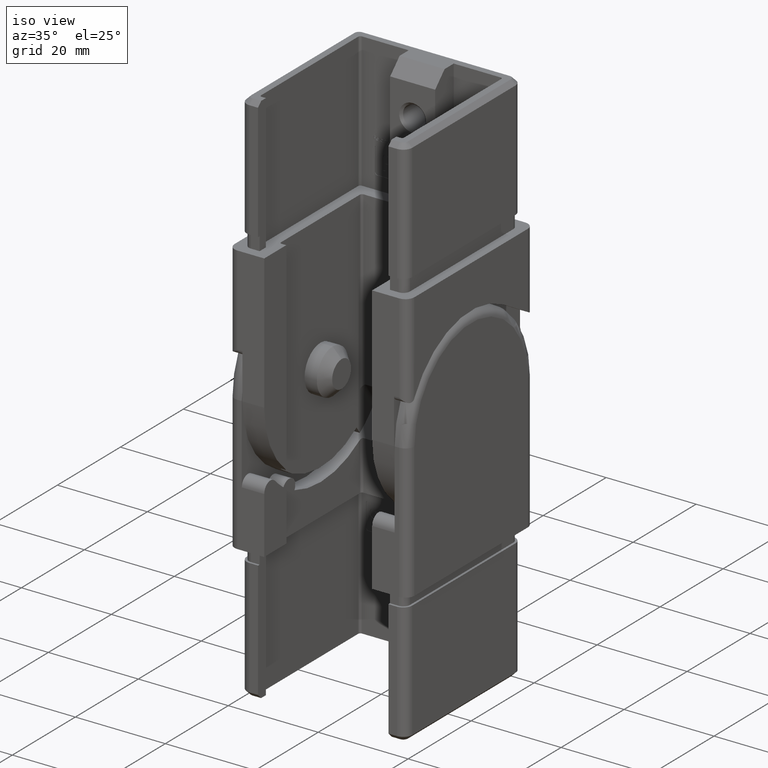
[diagram: clean part render]
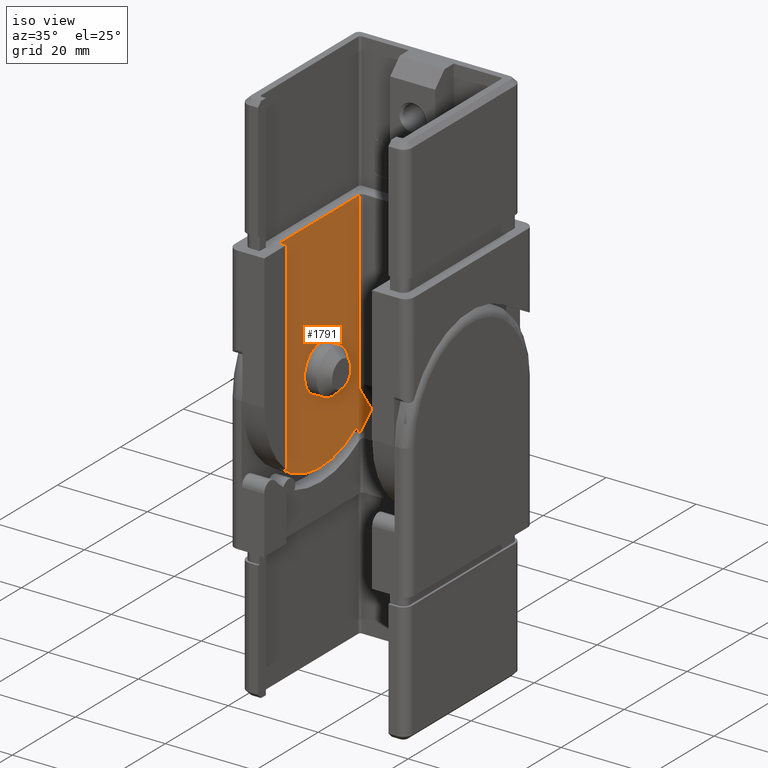
[diagram: same view with one face highlighted and labeled with its STEP entity id]
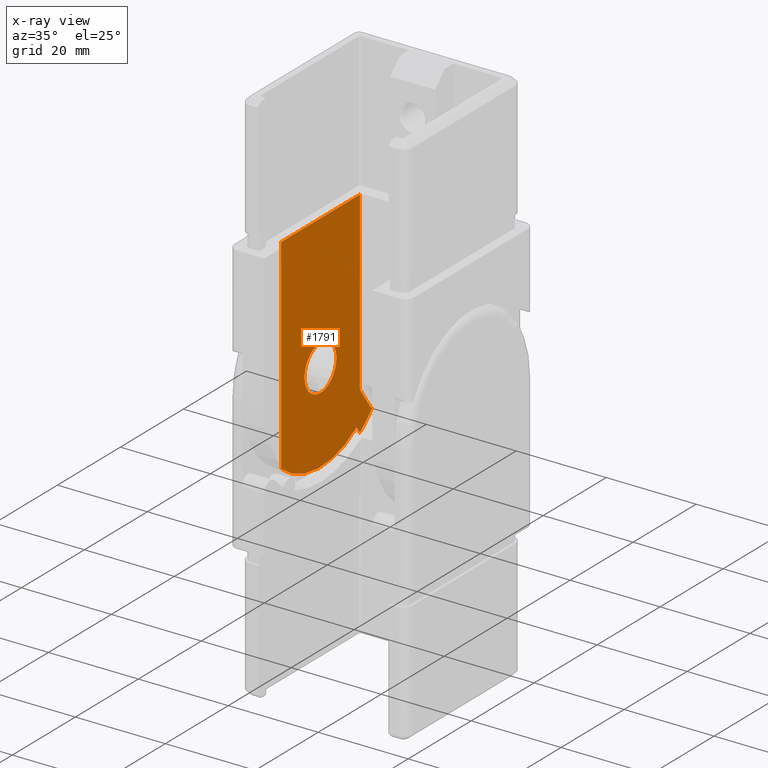
[diagram: x-ray of the same camera — body ghosted, the highlighted face saturated]
A machine part, iso view. The second image highlights one B-rep face of the part: STEP entity #1791.
The next image is the same camera in x-ray: the body ghosted, the highlighted face saturated — about 0% of this face is hidden behind the body in this view.
In plain terms, the highlighted planar face has unit normal (1, 0, 0).
Its self-contained STEP definition (entity closure, byte-faithful):
#320 = DIRECTION ( 'NONE',  ( -0.0000000000000000000, -0.5735764363510413900, 0.8191520442889950200 ) ) ;
#559 = CIRCLE ( 'NONE', #23959, 20.00000000000002800 ) ;
#1791 = ADVANCED_FACE ( 'NONE', ( #2171, #10781 ), #4613, .T. ) ;
#2171 = FACE_OUTER_BOUND ( 'NONE', #10698, .T. ) ;
#2402 = ORIENTED_EDGE ( 'NONE', *, *, #8457, .T. ) ;
#2419 = CARTESIAN_POINT ( 'NONE',  ( -13.49999999999998900, -5.050000000000001600, -30.00000000000000000 ) ) ;
#2611 = CARTESIAN_POINT ( 'NONE',  ( -13.50000000000000000, 12.18084795571099100, -38.67881975027214000 ) ) ;
#2798 = ORIENTED_EDGE ( 'NONE', *, *, #20156, .T. ) ;
#2855 = CARTESIAN_POINT ( 'NONE',  ( -13.50000000000000000, 12.50396631245270700, -47.85751456550009000 ) ) ;
#2898 = CIRCLE ( 'NONE', #14212, 5.050000000000001600 ) ;
#3005 = DIRECTION ( 'NONE',  ( 0.0000000000000000000, 0.0000000000000000000, -1.000000000000000000 ) ) ;
#3091 = DIRECTION ( 'NONE',  ( -3.469446951953609300E-016, -1.000000000000000000, 0.0000000000000000000 ) ) ;
#3190 = LINE ( 'NONE', #4595, #11825 ) ;
#3456 = VERTEX_POINT ( 'NONE', #9348 ) ;
#3464 = EDGE_CURVE ( 'NONE', #13940, #15973, #15968, .T. ) ;
#3605 = DIRECTION ( 'NONE',  ( 4.003208021484941500E-016, 1.000000000000000000, 0.0000000000000000000 ) ) ;
#3723 = CARTESIAN_POINT ( 'NONE',  ( -13.49999999999998800, 1.734723475976807800E-016, -30.00000000000000000 ) ) ;
#4349 = DIRECTION ( 'NONE',  ( 0.0000000000000000000, -0.0000000000000000000, -1.000000000000000000 ) ) ;
#4423 = VERTEX_POINT ( 'NONE', #2855 ) ;
#4576 = DIRECTION ( 'NONE',  ( 1.000000000000000000, 0.0000000000000000000, 0.0000000000000000000 ) ) ;
#4595 = CARTESIAN_POINT ( 'NONE',  ( -13.50000000000000000, -12.49999999999997700, -45.19868415357075300 ) ) ;
#4613 = PLANE ( 'NONE',  #10673 ) ;
#5103 = VERTEX_POINT ( 'NONE', #18483 ) ;
#5526 = DIRECTION ( 'NONE',  ( -1.000000000000000000, 3.469446951953615700E-016, -0.0000000000000000000 ) ) ;
#5689 = DIRECTION ( 'NONE',  ( -3.435095992033280500E-016, -1.000000000000000000, 0.0000000000000000000 ) ) ;
#6516 = DIRECTION ( 'NONE',  ( 0.0000000000000000000, 0.0000000000000000000, -1.000000000000000000 ) ) ;
#6862 = DIRECTION ( 'NONE',  ( -1.000000000000000000, -0.0000000000000000000, -0.0000000000000000000 ) ) ;
#6971 = ORIENTED_EDGE ( 'NONE', *, *, #9605, .T. ) ;
#7449 = CIRCLE ( 'NONE', #14801, 1.500000000000001300 ) ;
#7768 = ORIENTED_EDGE ( 'NONE', *, *, #12139, .F. ) ;
#7830 = ORIENTED_EDGE ( 'NONE', *, *, #19503, .T. ) ;
#8457 = EDGE_CURVE ( 'NONE', #3456, #19215, #3190, .T. ) ;
#9060 = DIRECTION ( 'NONE',  ( 0.0000000000000000000, 0.0000000000000000000, -1.000000000000000000 ) ) ;
#9119 = DIRECTION ( 'NONE',  ( -1.000000000000000000, 3.469446951953615700E-016, -0.0000000000000000000 ) ) ;
#9121 = ORIENTED_EDGE ( 'NONE', *, *, #22441, .F. ) ;
#9208 = VERTEX_POINT ( 'NONE', #22235 ) ;
#9337 = EDGE_LOOP ( 'NONE', ( #10379 ) ) ;
#9348 = CARTESIAN_POINT ( 'NONE',  ( -13.49999999999999300, -12.49999999999997700, 0.0000000000000000000 ) ) ;
#9416 = CIRCLE ( 'NONE', #9923, 21.80000000000000100 ) ;
#9605 = EDGE_CURVE ( 'NONE', #9208, #13940, #14475, .T. ) ;
#9811 = VECTOR ( 'NONE', #13642, 1000.000000000000000 ) ;
#9923 = AXIS2_PLACEMENT_3D ( 'NONE', #16398, #4576, #9060 ) ;
#10379 = ORIENTED_EDGE ( 'NONE', *, *, #24933, .T. ) ;
#10502 = LINE ( 'NONE', #13333, #20981 ) ;
#10673 = AXIS2_PLACEMENT_3D ( 'NONE', #20588, #18530, #6516 ) ;
#10698 = EDGE_LOOP ( 'NONE', ( #6971, #24580, #7768, #2402, #9121, #7830, #21241, #2798 ) ) ;
#10781 = FACE_BOUND ( 'NONE', #9337, .T. ) ;
#11123 = VECTOR ( 'NONE', #320, 1000.000000000000000 ) ;
#11825 = VECTOR ( 'NONE', #4349, 1000.000000000000000 ) ;
#12139 = EDGE_CURVE ( 'NONE', #3456, #15973, #10502, .T. ) ;
#12264 = DIRECTION ( 'NONE',  ( 0.0000000000000000000, 0.5735764363510403900, -0.8191520442889958000 ) ) ;
#13333 = CARTESIAN_POINT ( 'NONE',  ( -13.49999999999999300, -12.99999999999998900, 0.0000000000000000000 ) ) ;
#13642 = DIRECTION ( 'NONE',  ( -0.0000000000000000000, 0.0000000000000000000, 1.000000000000000000 ) ) ;
#13940 = VERTEX_POINT ( 'NONE', #21338 ) ;
#14212 = AXIS2_PLACEMENT_3D ( 'NONE', #3723, #5526, #5689 ) ;
#14475 = LINE ( 'NONE', #2611, #11123 ) ;
#14785 = CARTESIAN_POINT ( 'NONE',  ( -13.49999999999998800, 1.734723475976807800E-016, -30.00000000000000000 ) ) ;
#14801 = AXIS2_PLACEMENT_3D ( 'NONE', #24729, #6862, #3005 ) ;
#15922 = CARTESIAN_POINT ( 'NONE',  ( -13.49999999999998200, 12.49999999999999500, 0.0000000000000000000 ) ) ;
#15968 = LINE ( 'NONE', #25126, #9811 ) ;
#15973 = VERTEX_POINT ( 'NONE', #15922 ) ;
#16398 = CARTESIAN_POINT ( 'NONE',  ( -13.50000000000000000, 0.0000000000000000000, -30.00000000000000000 ) ) ;
#17174 = VERTEX_POINT ( 'NONE', #21148 ) ;
#18483 = CARTESIAN_POINT ( 'NONE',  ( -13.49999999999998400, 11.47152872702085000, -46.38304088577992000 ) ) ;
#18530 = DIRECTION ( 'NONE',  ( 1.000000000000000000, 0.0000000000000000000, 0.0000000000000000000 ) ) ;
#19215 = VERTEX_POINT ( 'NONE', #22383 ) ;
#19503 = EDGE_CURVE ( 'NONE', #5103, #4423, #24733, .T. ) ;
#20156 = EDGE_CURVE ( 'NONE', #17174, #9208, #7449, .T. ) ;
#20588 = CARTESIAN_POINT ( 'NONE',  ( -13.50000000000000000, 0.0000000000000000000, -30.00000000000000000 ) ) ;
#20981 = VECTOR ( 'NONE', #3605, 1000.000000000000000 ) ;
#21148 = CARTESIAN_POINT ( 'NONE',  ( -13.50000000000000000, 16.45444103097600700, -44.30004791453976800 ) ) ;
#21241 = ORIENTED_EDGE ( 'NONE', *, *, #24719, .T. ) ;
#21338 = CARTESIAN_POINT ( 'NONE',  ( -13.50000000000000000, 12.49999999999999500, -39.13461610617115800 ) ) ;
#21703 = VERTEX_POINT ( 'NONE', #2419 ) ;
#22101 = CARTESIAN_POINT ( 'NONE',  ( -13.50000000000000000, 11.47152872702083400, -46.38304088577989100 ) ) ;
#22235 = CARTESIAN_POINT ( 'NONE',  ( -13.50000000000000000, 15.73017538143649900, -43.74778463859721000 ) ) ;
#22383 = CARTESIAN_POINT ( 'NONE',  ( -13.49999999999999100, -12.49999999999997300, -45.61249499599605200 ) ) ;
#22441 = EDGE_CURVE ( 'NONE', #5103, #19215, #559, .T. ) ;
#23507 = VECTOR ( 'NONE', #12264, 999.9999999999998900 ) ;
#23959 = AXIS2_PLACEMENT_3D ( 'NONE', #14785, #9119, #3091 ) ;
#24580 = ORIENTED_EDGE ( 'NONE', *, *, #3464, .T. ) ;
#24719 = EDGE_CURVE ( 'NONE', #4423, #17174, #9416, .T. ) ;
#24729 = CARTESIAN_POINT ( 'NONE',  ( -13.50000000000000000, 16.95890344786998900, -42.88741998407064000 ) ) ;
#24733 = LINE ( 'NONE', #22101, #23507 ) ;
#24933 = EDGE_CURVE ( 'NONE', #21703, #21703, #2898, .T. ) ;
#25126 = CARTESIAN_POINT ( 'NONE',  ( -13.50000000000000000, 12.49999999999999500, 0.0000000000000000000 ) ) ;